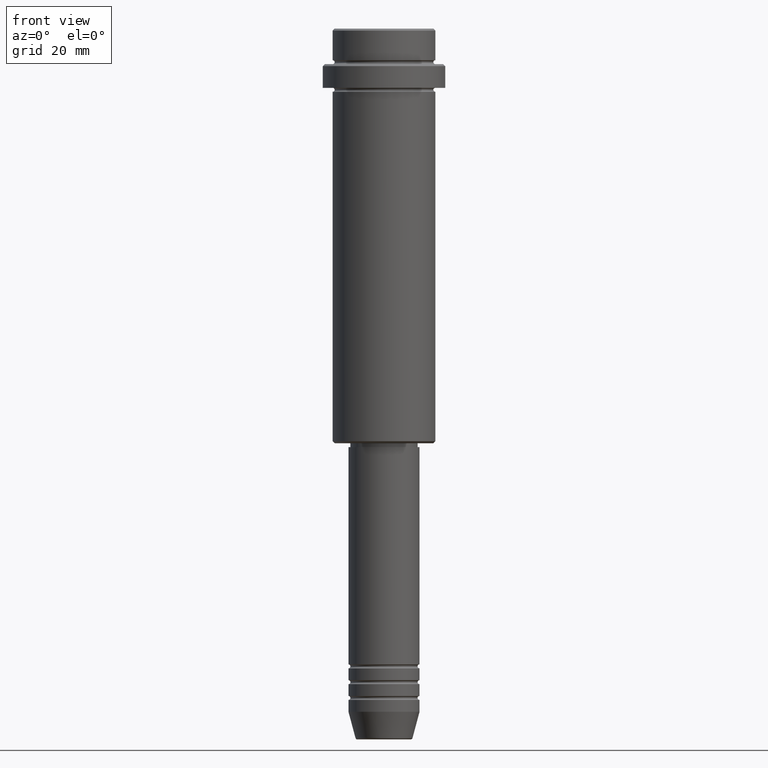
[diagram: clean part render]
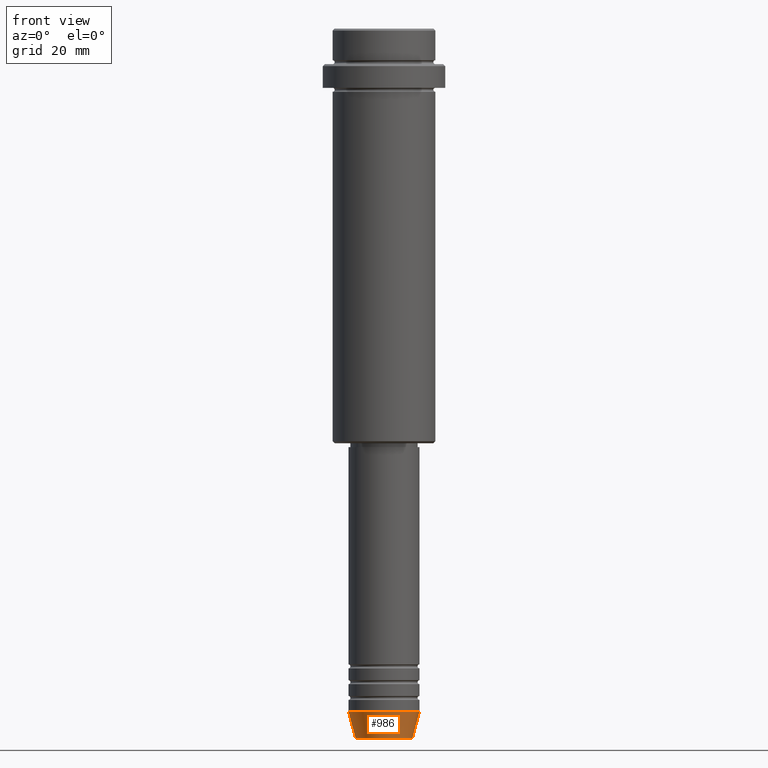
[diagram: same view with one face highlighted and labeled with its STEP entity id]
A machine part, front view. The second image highlights one B-rep face of the part: STEP entity #986.
In plain terms, the highlighted conical surface has half-angle 15 deg.
Its self-contained STEP definition (entity closure, byte-faithful):
#28 = EDGE_CURVE ( 'NONE', #1210, #73, #1154, .T. ) ;
#43 = EDGE_CURVE ( 'NONE', #73, #160, #387, .T. ) ;
#73 = VERTEX_POINT ( 'NONE', #1266 ) ;
#77 = VECTOR ( 'NONE', #504, 1000.000000000000000 ) ;
#160 = VERTEX_POINT ( 'NONE', #959 ) ;
#177 = LINE ( 'NONE', #1070, #77 ) ;
#178 = DIRECTION ( 'NONE',  ( 1.000000000000000000, 0.000000000000000000, 0.000000000000000000 ) ) ;
#387 = CIRCLE ( 'NONE', #1379, 9.000000000000000000 ) ;
#458 = CARTESIAN_POINT ( 'NONE',  ( -7.223655072137189492, 9.934123627281765110E-16, -179.6294095225512706 ) ) ;
#502 = CARTESIAN_POINT ( 'NONE',  ( -9.000000000000000000, 1.102182119232617714E-15, -173.0000000000000000 ) ) ;
#503 = ORIENTED_EDGE ( 'NONE', *, *, #1004, .T. ) ;
#504 = DIRECTION ( 'NONE',  ( 0.2588190451025213501, 0.000000000000000000, 0.9659258262890680902 ) ) ;
#554 = VECTOR ( 'NONE', #1170, 1000.000000000000000 ) ;
#626 = CARTESIAN_POINT ( 'NONE',  ( 0.000000000000000000, 0.000000000000000000, -173.0000000000000000 ) ) ;
#645 = EDGE_LOOP ( 'NONE', ( #1322, #1244, #503, #728 ) ) ;
#670 = FACE_OUTER_BOUND ( 'NONE', #645, .T. ) ;
#692 = AXIS2_PLACEMENT_3D ( 'NONE', #709, #1269, #178 ) ;
#709 = CARTESIAN_POINT ( 'NONE',  ( 0.000000000000000000, 0.000000000000000000, -179.6294095225512706 ) ) ;
#714 = CIRCLE ( 'NONE', #692, 7.223655072137188604 ) ;
#728 = ORIENTED_EDGE ( 'NONE', *, *, #43, .F. ) ;
#730 = DIRECTION ( 'NONE',  ( -0.000000000000000000, -0.000000000000000000, 1.000000000000000000 ) ) ;
#806 = EDGE_CURVE ( 'NONE', #1210, #1246, #714, .T. ) ;
#846 = CARTESIAN_POINT ( 'NONE',  ( 0.000000000000000000, 0.000000000000000000, -173.0000000000000000 ) ) ;
#890 = CONICAL_SURFACE ( 'NONE', #1362, 9.000000000000000000, 0.2617993877991500740 ) ;
#959 = CARTESIAN_POINT ( 'NONE',  ( 9.000000000000000000, 0.000000000000000000, -173.0000000000000000 ) ) ;
#986 = ADVANCED_FACE ( 'NONE', ( #670 ), #890, .T. ) ;
#1004 = EDGE_CURVE ( 'NONE', #1246, #160, #177, .T. ) ;
#1047 = CARTESIAN_POINT ( 'NONE',  ( 7.223655072137188604, 0.000000000000000000, -179.6294095225512706 ) ) ;
#1070 = CARTESIAN_POINT ( 'NONE',  ( 9.000000000000000000, 0.000000000000000000, -173.0000000000000000 ) ) ;
#1154 = LINE ( 'NONE', #502, #554 ) ;
#1170 = DIRECTION ( 'NONE',  ( -0.2588190451025213501, 3.169619151431772337E-17, 0.9659258262890680902 ) ) ;
#1210 = VERTEX_POINT ( 'NONE', #458 ) ;
#1244 = ORIENTED_EDGE ( 'NONE', *, *, #806, .T. ) ;
#1246 = VERTEX_POINT ( 'NONE', #1047 ) ;
#1259 = DIRECTION ( 'NONE',  ( -0.000000000000000000, -0.000000000000000000, 1.000000000000000000 ) ) ;
#1266 = CARTESIAN_POINT ( 'NONE',  ( -9.000000000000000000, 1.102182119232617714E-15, -173.0000000000000000 ) ) ;
#1268 = DIRECTION ( 'NONE',  ( 1.000000000000000000, 0.000000000000000000, 0.000000000000000000 ) ) ;
#1269 = DIRECTION ( 'NONE',  ( -0.000000000000000000, -0.000000000000000000, 1.000000000000000000 ) ) ;
#1282 = DIRECTION ( 'NONE',  ( 1.000000000000000000, 0.000000000000000000, 0.000000000000000000 ) ) ;
#1322 = ORIENTED_EDGE ( 'NONE', *, *, #28, .F. ) ;
#1362 = AXIS2_PLACEMENT_3D ( 'NONE', #846, #730, #1268 ) ;
#1379 = AXIS2_PLACEMENT_3D ( 'NONE', #626, #1259, #1282 ) ;